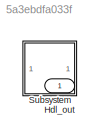
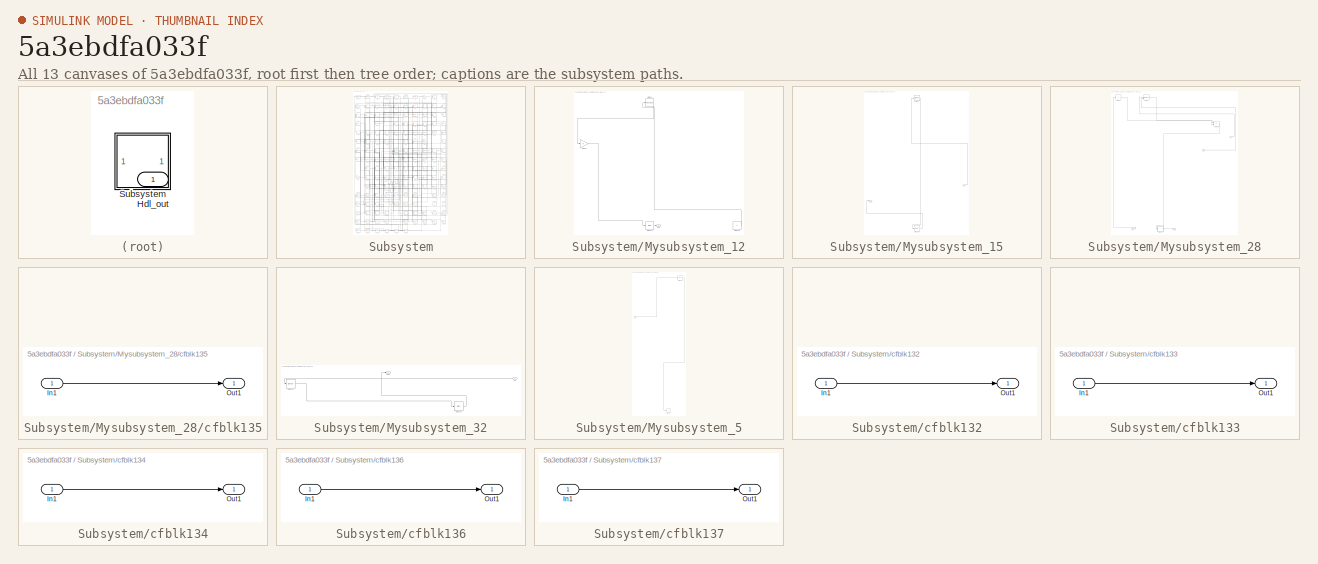
[diagram: thumbnail index - all 13 canvases of the model, root first then tree order]
MODEL slx_5a3ebdfa033f
KIND model
CONFIG AbsTol = auto
CONFIG EnableMultiTasking = off
CONFIG FixedStep = auto
CONFIG MaxStep = auto
CONFIG MinStep = auto
CONFIG RelTol = 1e-3
CONFIG SampleTimeConstraint = Unconstrained
CONFIG SolverName = VariableStepAuto
CONFIG StartTime = 0.0
CONFIG StopTime = 10.0
BLOCK [Outport] Hdl_out
  OutDataTypeStr = uint8
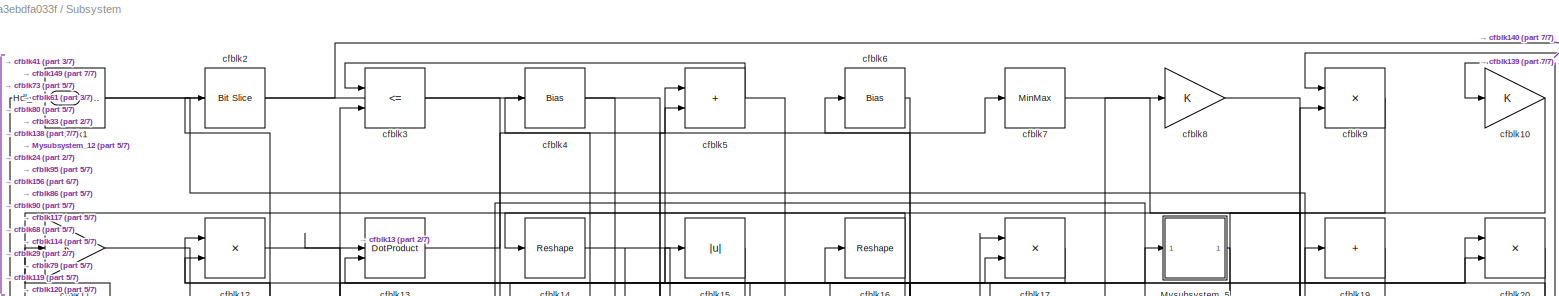
[diagram: Subsystem - part 1/7, full width, top band]
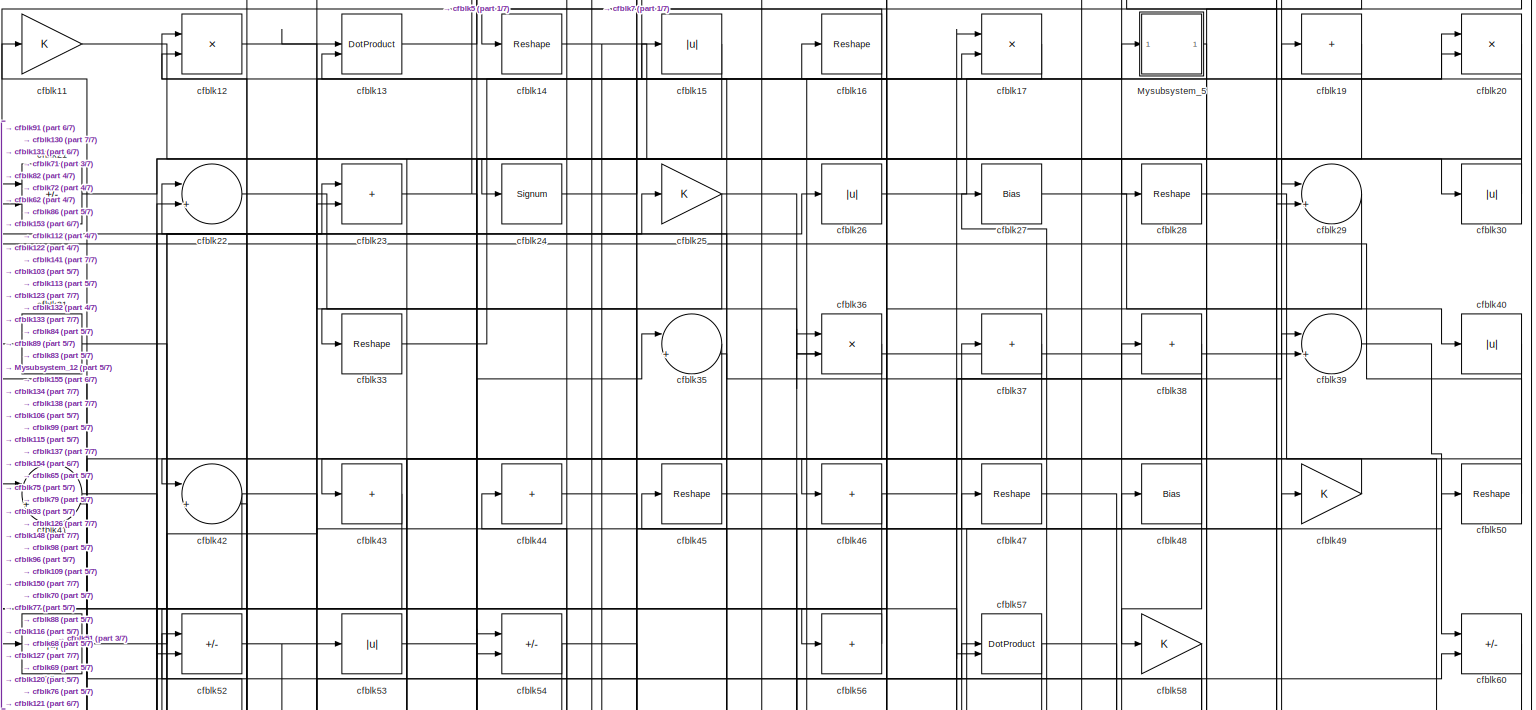
[diagram: Subsystem - part 2/7, full width, top band]
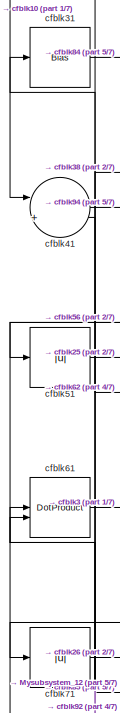
[diagram: Subsystem - part 3/7, middle left region]
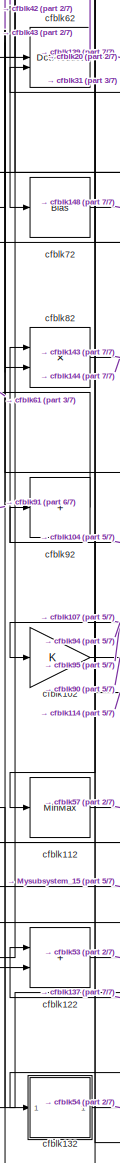
[diagram: Subsystem - part 4/7, middle left region]
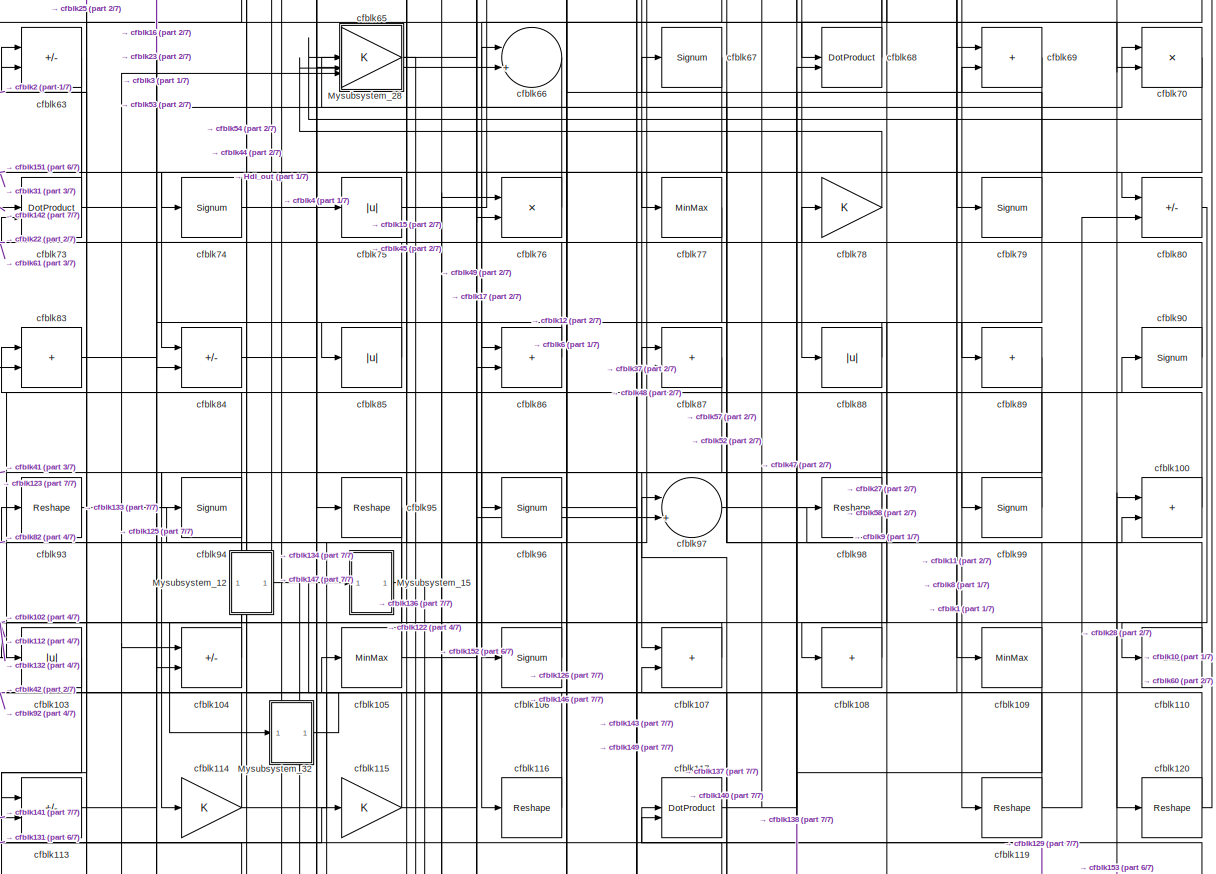
[diagram: Subsystem - part 5/7, full width, middle band]
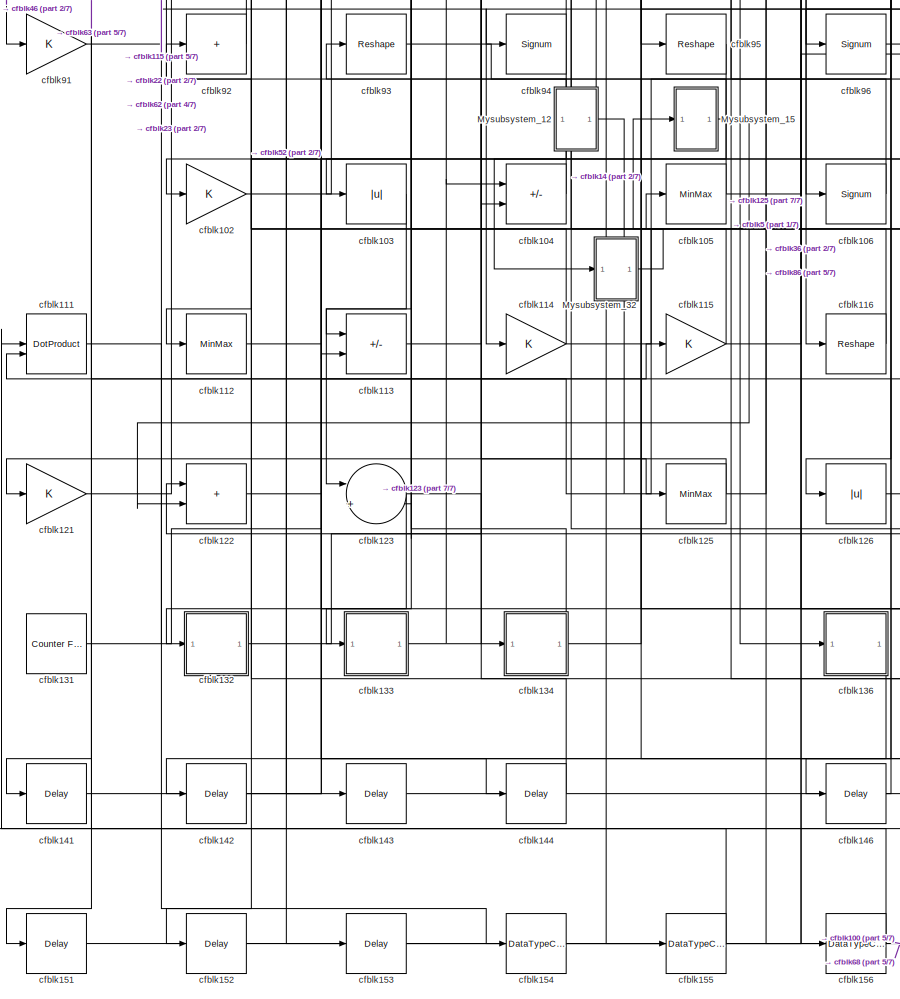
[diagram: Subsystem - part 6/7, bottom left region]
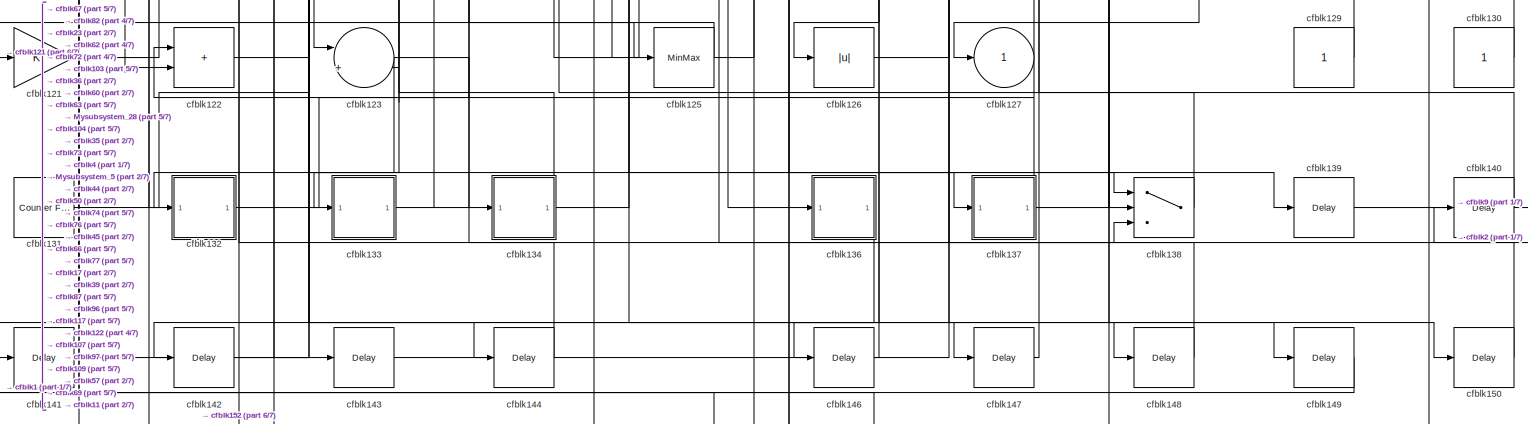
[diagram: Subsystem - part 7/7, full width, bottom band]
BLOCK [SubSystem] Subsystem
BLOCK [Outport] Subsystem/Hdl_out
  OutDataTypeStr = uint8
  Port = 2
BLOCK [SubSystem] Subsystem/Mysubsystem_12
  RTWFcnName = Mysubsystem_12
  RTWFcnNameOpts = User specified
  RTWFileNameOpts = Use function name
  RTWSystemCode = Reusable function
  TreatAsAtomicUnit = on
BLOCK [Outport] Subsystem/Mysubsystem_12/Out1
BLOCK [Bias] Subsystem/Mysubsystem_12/cfblk124
  Bias = 0.0
  SaturateOnIntegerOverflow = off
BLOCK [Constant] Subsystem/Mysubsystem_12/cfblk128
  SampleTime = -1
BLOCK [Reshape] Subsystem/Mysubsystem_12/cfblk64
BLOCK [Gain] Subsystem/Mysubsystem_12/cfblk81
BLOCK [SubSystem] Subsystem/Mysubsystem_15
  RTWFcnName = Mysubsystem_15
  RTWFcnNameOpts = User specified
  RTWFileNameOpts = Use function name
  RTWSystemCode = Reusable function
  TreatAsAtomicUnit = on
BLOCK [Inport] Subsystem/Mysubsystem_15/In1
BLOCK [Outport] Subsystem/Mysubsystem_15/Out1
BLOCK [Delay] Subsystem/Mysubsystem_15/cfblk145
  InputPortMap = u0
  SampleTime = 1
BLOCK [MinMax] Subsystem/Mysubsystem_15/cfblk55
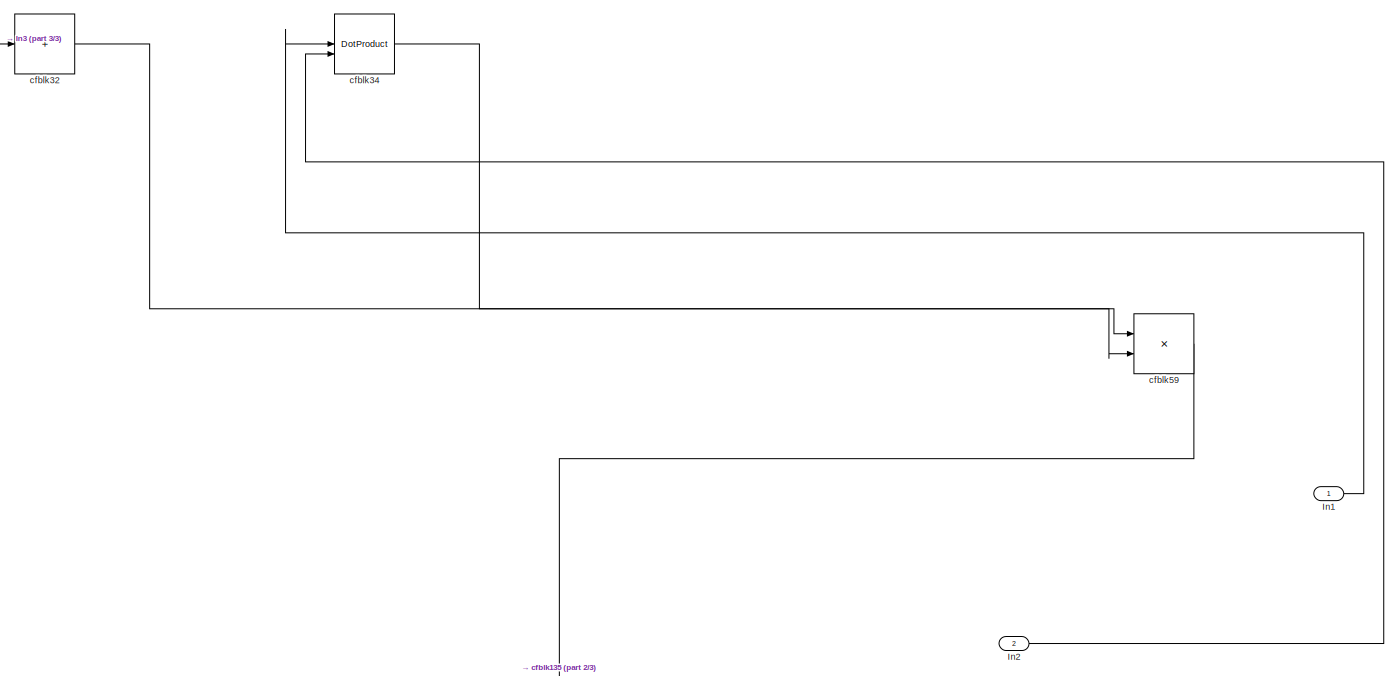
[diagram: Subsystem/Mysubsystem_28 - part 1/3, full width, top band]
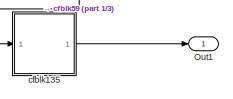
[diagram: Subsystem/Mysubsystem_28 - part 2/3, bottom center region]
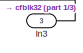
[diagram: Subsystem/Mysubsystem_28 - part 3/3, bottom left region]
BLOCK [SubSystem] Subsystem/Mysubsystem_28
  RTWFcnName = Mysubsystem_28
  RTWFcnNameOpts = User specified
  RTWFileNameOpts = Use function name
  RTWSystemCode = Reusable function
  TreatAsAtomicUnit = on
BLOCK [Inport] Subsystem/Mysubsystem_28/In1
BLOCK [Inport] Subsystem/Mysubsystem_28/In2
  Port = 2
BLOCK [Inport] Subsystem/Mysubsystem_28/In3
  Port = 3
BLOCK [Outport] Subsystem/Mysubsystem_28/Out1
BLOCK [SubSystem] Subsystem/Mysubsystem_28/cfblk135
  LibrarySourceBlock = hdlsllib/Ports &\nSubsystems/Subsystem
BLOCK [Inport] Subsystem/Mysubsystem_28/cfblk135/In1
BLOCK [Outport] Subsystem/Mysubsystem_28/cfblk135/Out1
BLOCK [Sum] Subsystem/Mysubsystem_28/cfblk32
  IconShape = rectangular
  Inputs = +
BLOCK [DotProduct] Subsystem/Mysubsystem_28/cfblk34
  OutDataTypeStr = Inherit: Inherit via internal rule
BLOCK [Product] Subsystem/Mysubsystem_28/cfblk59
  Inputs = */
  RndMeth = Zero
  SaturateOnIntegerOverflow = on
BLOCK [SubSystem] Subsystem/Mysubsystem_32
  RTWFcnName = Mysubsystem_32
  RTWFcnNameOpts = User specified
  RTWFileNameOpts = Use function name
  RTWSystemCode = Reusable function
  TreatAsAtomicUnit = on
BLOCK [Inport] Subsystem/Mysubsystem_32/In1
BLOCK [Outport] Subsystem/Mysubsystem_32/Out1
BLOCK [Signum] Subsystem/Mysubsystem_32/cfblk101
BLOCK [Bias] Subsystem/Mysubsystem_32/cfblk118
  Bias = 0.0
  SaturateOnIntegerOverflow = off
BLOCK [SubSystem] Subsystem/Mysubsystem_5
  RTWFcnName = Mysubsystem_5
  RTWFcnNameOpts = User specified
  RTWFileNameOpts = Use function name
  RTWSystemCode = Reusable function
  TreatAsAtomicUnit = on
BLOCK [Inport] Subsystem/Mysubsystem_5/In1
BLOCK [Outport] Subsystem/Mysubsystem_5/cfblk127
  VectorParamsAs1DForOutWhenUnconnected = off
BLOCK [Bias] Subsystem/Mysubsystem_5/cfblk18
  Bias = 0.0
  SaturateOnIntegerOverflow = off
BLOCK [Reference] Subsystem/cfblk1  REF=simulink/Logic and Bit
Operations/Detect
Increase
  LibrarySourceBlock = hdlsllib/Logic and Bit\nOperations/Detect\nIncrease
  SourceBlock = simulink/Logic and Bit\nOperations/Detect\nIncrease
  SourceType = Detect Increase
BLOCK [Gain] Subsystem/cfblk10
  OutDataTypeStr = uint8
BLOCK [Sum] Subsystem/cfblk100
  IconShape = rectangular
  OutDataTypeStr = uint8
BLOCK [Gain] Subsystem/cfblk102
  OutDataTypeStr = uint8
BLOCK [Abs] Subsystem/cfblk103
  OutDataTypeStr = uint8
  SaturateOnIntegerOverflow = off
BLOCK [Sum] Subsystem/cfblk104
  IconShape = rectangular
  Inputs = +-
  OutDataTypeStr = uint8
BLOCK [MinMax] Subsystem/cfblk105
  OutDataTypeStr = uint8
BLOCK [Signum] Subsystem/cfblk106
BLOCK [Sum] Subsystem/cfblk107
  IconShape = rectangular
  OutDataTypeStr = uint8
BLOCK [Sum] Subsystem/cfblk108
  IconShape = rectangular
  Inputs = +
  OutDataTypeStr = uint8
BLOCK [MinMax] Subsystem/cfblk109
  OutDataTypeStr = uint8
BLOCK [Gain] Subsystem/cfblk11
  OutDataTypeStr = uint8
BLOCK [Bias] Subsystem/cfblk110
  Bias = 0.0
  SaturateOnIntegerOverflow = off
BLOCK [DotProduct] Subsystem/cfblk111
  OutDataTypeStr = uint8
BLOCK [MinMax] Subsystem/cfblk112
  OutDataTypeStr = uint8
BLOCK [Sum] Subsystem/cfblk113
  IconShape = rectangular
  Inputs = +-
  OutDataTypeStr = uint8
BLOCK [Gain] Subsystem/cfblk114
  OutDataTypeStr = uint8
BLOCK [Gain] Subsystem/cfblk115
  OutDataTypeStr = uint8
BLOCK [Reshape] Subsystem/cfblk116
BLOCK [DotProduct] Subsystem/cfblk117
  OutDataTypeStr = uint8
BLOCK [Reshape] Subsystem/cfblk119
BLOCK [Product] Subsystem/cfblk12
  Inputs = */
  OutDataTypeStr = uint8
  RndMeth = Zero
  SaturateOnIntegerOverflow = on
BLOCK [Reshape] Subsystem/cfblk120
BLOCK [Gain] Subsystem/cfblk121
  OutDataTypeStr = uint8
BLOCK [Sum] Subsystem/cfblk122
  IconShape = rectangular
  OutDataTypeStr = uint8
BLOCK [Sum] Subsystem/cfblk123
  Inputs = |++
  OutDataTypeStr = uint8
BLOCK [MinMax] Subsystem/cfblk125
  OutDataTypeStr = uint8
BLOCK [Abs] Subsystem/cfblk126
  OutDataTypeStr = uint8
  SaturateOnIntegerOverflow = off
BLOCK [Outport] Subsystem/cfblk127
  OutDataTypeStr = uint8
  VectorParamsAs1DForOutWhenUnconnected = off
BLOCK [Constant] Subsystem/cfblk129
  OutDataTypeStr = uint8
  SampleTime = -1
BLOCK [DotProduct] Subsystem/cfblk13
  OutDataTypeStr = uint8
BLOCK [Constant] Subsystem/cfblk130
  OutDataTypeStr = uint8
  SampleTime = -1
BLOCK [Reference] Subsystem/cfblk131  REF=hdlsllib/Sources/Counter
Free-Running
  SourceBlock = hdlsllib/Sources/Counter\nFree-Running
  SourceType = Counter Free-Running
BLOCK [SubSystem] Subsystem/cfblk132
  LibrarySourceBlock = hdlsllib/Ports &\nSubsystems/Subsystem
BLOCK [Inport] Subsystem/cfblk132/In1
BLOCK [Outport] Subsystem/cfblk132/Out1
BLOCK [SubSystem] Subsystem/cfblk133
  LibrarySourceBlock = hdlsllib/Ports &\nSubsystems/Subsystem
BLOCK [Inport] Subsystem/cfblk133/In1
BLOCK [Outport] Subsystem/cfblk133/Out1
BLOCK [SubSystem] Subsystem/cfblk134
  LibrarySourceBlock = hdlsllib/Ports &\nSubsystems/Subsystem
BLOCK [Inport] Subsystem/cfblk134/In1
BLOCK [Outport] Subsystem/cfblk134/Out1
BLOCK [SubSystem] Subsystem/cfblk136
  LibrarySourceBlock = hdlsllib/Ports &\nSubsystems/Subsystem
BLOCK [Inport] Subsystem/cfblk136/In1
BLOCK [Outport] Subsystem/cfblk136/Out1
BLOCK [SubSystem] Subsystem/cfblk137
  LibrarySourceBlock = hdlsllib/Ports &\nSubsystems/Subsystem
BLOCK [Inport] Subsystem/cfblk137/In1
BLOCK [Outport] Subsystem/cfblk137/Out1
BLOCK [Switch] Subsystem/cfblk138
  InputSameDT = off
  OutDataTypeStr = uint8
  SaturateOnIntegerOverflow = off
BLOCK [Delay] Subsystem/cfblk139
  InputPortMap = u0
  SampleTime = 1
BLOCK [Reshape] Subsystem/cfblk14
BLOCK [Delay] Subsystem/cfblk140
  InputPortMap = u0
  SampleTime = 1
BLOCK [Delay] Subsystem/cfblk141
  InputPortMap = u0
  SampleTime = 1
BLOCK [Delay] Subsystem/cfblk142
  InputPortMap = u0
  SampleTime = 1
BLOCK [Delay] Subsystem/cfblk143
  InputPortMap = u0
  SampleTime = 1
BLOCK [Delay] Subsystem/cfblk144
  InputPortMap = u0
  SampleTime = 1
BLOCK [Delay] Subsystem/cfblk146
  InputPortMap = u0
  SampleTime = 1
BLOCK [Delay] Subsystem/cfblk147
  InputPortMap = u0
  SampleTime = 1
BLOCK [Delay] Subsystem/cfblk148
  InputPortMap = u0
  SampleTime = 1
BLOCK [Delay] Subsystem/cfblk149
  InputPortMap = u0
  SampleTime = 1
BLOCK [Abs] Subsystem/cfblk15
  OutDataTypeStr = uint8
  SaturateOnIntegerOverflow = off
BLOCK [Delay] Subsystem/cfblk150
  InputPortMap = u0
  SampleTime = 1
BLOCK [Delay] Subsystem/cfblk151
  InputPortMap = u0
  SampleTime = 1
BLOCK [Delay] Subsystem/cfblk152
  InputPortMap = u0
  SampleTime = 1
BLOCK [Delay] Subsystem/cfblk153
  InputPortMap = u0
  SampleTime = 1
BLOCK [DataTypeConversion] Subsystem/cfblk154
  OutDataTypeStr = uint8
  RndMeth = Floor
  SaturateOnIntegerOverflow = off
BLOCK [DataTypeConversion] Subsystem/cfblk155
  OutDataTypeStr = uint8
  RndMeth = Floor
  SaturateOnIntegerOverflow = off
BLOCK [DataTypeConversion] Subsystem/cfblk156
  OutDataTypeStr = uint8
  RndMeth = Floor
  SaturateOnIntegerOverflow = off
BLOCK [Reshape] Subsystem/cfblk16
BLOCK [Product] Subsystem/cfblk17
  Inputs = */
  OutDataTypeStr = uint8
  RndMeth = Zero
  SaturateOnIntegerOverflow = on
BLOCK [Sum] Subsystem/cfblk19
  IconShape = rectangular
  Inputs = +
  OutDataTypeStr = uint8
BLOCK [Reference] Subsystem/cfblk2  REF=hdlsllib/Logic and Bit
Operations/Bit Slice
  SourceBlock = hdlsllib/Logic and Bit\nOperations/Bit Slice
  SourceType = Bit Slice
BLOCK [Product] Subsystem/cfblk20
  Inputs = */
  OutDataTypeStr = uint8
  RndMeth = Zero
  SaturateOnIntegerOverflow = on
BLOCK [Sum] Subsystem/cfblk21
  IconShape = rectangular
  Inputs = +-
  OutDataTypeStr = uint8
BLOCK [Sum] Subsystem/cfblk22
  Inputs = |++
  OutDataTypeStr = uint8
BLOCK [Sum] Subsystem/cfblk23
  IconShape = rectangular
  OutDataTypeStr = uint8
BLOCK [Signum] Subsystem/cfblk24
BLOCK [Gain] Subsystem/cfblk25
  OutDataTypeStr = uint8
BLOCK [Abs] Subsystem/cfblk26
  OutDataTypeStr = uint8
  SaturateOnIntegerOverflow = off
BLOCK [Bias] Subsystem/cfblk27
  Bias = 0.0
  SaturateOnIntegerOverflow = off
BLOCK [Reshape] Subsystem/cfblk28
BLOCK [Sum] Subsystem/cfblk29
  Inputs = |++
  OutDataTypeStr = uint8
BLOCK [RelationalOperator] Subsystem/cfblk3
  InputSameDT = off
  Operator = <=
  OutDataTypeStr = boolean
BLOCK [Abs] Subsystem/cfblk30
  OutDataTypeStr = uint8
  SaturateOnIntegerOverflow = off
BLOCK [Bias] Subsystem/cfblk31
  Bias = 0.0
  SaturateOnIntegerOverflow = off
BLOCK [Reshape] Subsystem/cfblk33
BLOCK [Sum] Subsystem/cfblk35
  Inputs = |++
  OutDataTypeStr = uint8
BLOCK [Product] Subsystem/cfblk36
  Inputs = */
  OutDataTypeStr = uint8
  RndMeth = Zero
  SaturateOnIntegerOverflow = on
BLOCK [Sum] Subsystem/cfblk37
  IconShape = rectangular
  Inputs = +
  OutDataTypeStr = uint8
BLOCK [Sum] Subsystem/cfblk38
  IconShape = rectangular
  Inputs = +
  OutDataTypeStr = uint8
BLOCK [Sum] Subsystem/cfblk39
  Inputs = |++
  OutDataTypeStr = uint8
BLOCK [Bias] Subsystem/cfblk4
  Bias = 0.0
  SaturateOnIntegerOverflow = off
BLOCK [Abs] Subsystem/cfblk40
  OutDataTypeStr = uint8
  SaturateOnIntegerOverflow = off
BLOCK [Sum] Subsystem/cfblk41
  Inputs = |++
  OutDataTypeStr = uint8
BLOCK [Sum] Subsystem/cfblk42
  Inputs = |++
  OutDataTypeStr = uint8
BLOCK [Sum] Subsystem/cfblk43
  IconShape = rectangular
  Inputs = +
  OutDataTypeStr = uint8
BLOCK [Sum] Subsystem/cfblk44
  IconShape = rectangular
  Inputs = +
  OutDataTypeStr = uint8
BLOCK [Reshape] Subsystem/cfblk45
BLOCK [Sum] Subsystem/cfblk46
  IconShape = rectangular
  Inputs = +
  OutDataTypeStr = uint8
BLOCK [Reshape] Subsystem/cfblk47
BLOCK [Bias] Subsystem/cfblk48
  Bias = 0.0
  SaturateOnIntegerOverflow = off
BLOCK [Gain] Subsystem/cfblk49
  OutDataTypeStr = uint8
BLOCK [Sum] Subsystem/cfblk5
  IconShape = rectangular
  OutDataTypeStr = uint8
BLOCK [Reshape] Subsystem/cfblk50
BLOCK [Abs] Subsystem/cfblk51
  OutDataTypeStr = uint8
  SaturateOnIntegerOverflow = off
BLOCK [Sum] Subsystem/cfblk52
  IconShape = rectangular
  Inputs = +-
  OutDataTypeStr = uint8
BLOCK [Abs] Subsystem/cfblk53
  OutDataTypeStr = uint8
  SaturateOnIntegerOverflow = off
BLOCK [Sum] Subsystem/cfblk54
  IconShape = rectangular
  Inputs = +-
  OutDataTypeStr = uint8
BLOCK [Sum] Subsystem/cfblk56
  IconShape = rectangular
  Inputs = +
  OutDataTypeStr = uint8
BLOCK [DotProduct] Subsystem/cfblk57
  OutDataTypeStr = uint8
BLOCK [Gain] Subsystem/cfblk58
  OutDataTypeStr = uint8
BLOCK [Bias] Subsystem/cfblk6
  Bias = 0.0
  SaturateOnIntegerOverflow = off
BLOCK [Sum] Subsystem/cfblk60
  IconShape = rectangular
  Inputs = +-
  OutDataTypeStr = uint8
BLOCK [DotProduct] Subsystem/cfblk61
  OutDataTypeStr = uint8
BLOCK [DotProduct] Subsystem/cfblk62
  OutDataTypeStr = uint8
BLOCK [Sum] Subsystem/cfblk63
  IconShape = rectangular
  Inputs = +-
  OutDataTypeStr = uint8
BLOCK [Gain] Subsystem/cfblk65
  OutDataTypeStr = uint8
BLOCK [Sum] Subsystem/cfblk66
  Inputs = |++
  OutDataTypeStr = uint8
BLOCK [Signum] Subsystem/cfblk67
BLOCK [DotProduct] Subsystem/cfblk68
  OutDataTypeStr = uint8
BLOCK [Sum] Subsystem/cfblk69
  IconShape = rectangular
  OutDataTypeStr = uint8
BLOCK [MinMax] Subsystem/cfblk7
  OutDataTypeStr = uint8
BLOCK [Product] Subsystem/cfblk70
  Inputs = */
  OutDataTypeStr = uint8
  RndMeth = Zero
  SaturateOnIntegerOverflow = on
BLOCK [Abs] Subsystem/cfblk71
  OutDataTypeStr = uint8
  SaturateOnIntegerOverflow = off
BLOCK [Bias] Subsystem/cfblk72
  Bias = 0.0
  SaturateOnIntegerOverflow = off
BLOCK [DotProduct] Subsystem/cfblk73
  OutDataTypeStr = uint8
BLOCK [Signum] Subsystem/cfblk74
BLOCK [Abs] Subsystem/cfblk75
  OutDataTypeStr = uint8
  SaturateOnIntegerOverflow = off
BLOCK [Product] Subsystem/cfblk76
  Inputs = */
  OutDataTypeStr = uint8
  RndMeth = Zero
  SaturateOnIntegerOverflow = on
BLOCK [MinMax] Subsystem/cfblk77
  OutDataTypeStr = uint8
BLOCK [Gain] Subsystem/cfblk78
  OutDataTypeStr = uint8
BLOCK [Signum] Subsystem/cfblk79
BLOCK [Gain] Subsystem/cfblk8
  OutDataTypeStr = uint8
BLOCK [Sum] Subsystem/cfblk80
  IconShape = rectangular
  Inputs = +-
  OutDataTypeStr = uint8
BLOCK [Product] Subsystem/cfblk82
  Inputs = */
  OutDataTypeStr = uint8
  RndMeth = Zero
  SaturateOnIntegerOverflow = on
BLOCK [Sum] Subsystem/cfblk83
  IconShape = rectangular
  OutDataTypeStr = uint8
BLOCK [Sum] Subsystem/cfblk84
  IconShape = rectangular
  Inputs = +-
  OutDataTypeStr = uint8
BLOCK [Abs] Subsystem/cfblk85
  OutDataTypeStr = uint8
  SaturateOnIntegerOverflow = off
BLOCK [Sum] Subsystem/cfblk86
  IconShape = rectangular
  OutDataTypeStr = uint8
BLOCK [Sum] Subsystem/cfblk87
  IconShape = rectangular
  OutDataTypeStr = uint8
BLOCK [Abs] Subsystem/cfblk88
  OutDataTypeStr = uint8
  SaturateOnIntegerOverflow = off
BLOCK [Sum] Subsystem/cfblk89
  IconShape = rectangular
  Inputs = +
  OutDataTypeStr = uint8
BLOCK [Product] Subsystem/cfblk9
  Inputs = */
  OutDataTypeStr = uint8
  RndMeth = Zero
  SaturateOnIntegerOverflow = on
BLOCK [Signum] Subsystem/cfblk90
BLOCK [Gain] Subsystem/cfblk91
  OutDataTypeStr = uint8
BLOCK [Sum] Subsystem/cfblk92
  IconShape = rectangular
  Inputs = +
  OutDataTypeStr = uint8
BLOCK [Reshape] Subsystem/cfblk93
BLOCK [Signum] Subsystem/cfblk94
BLOCK [Reshape] Subsystem/cfblk95
BLOCK [Signum] Subsystem/cfblk96
BLOCK [Sum] Subsystem/cfblk97
  Inputs = |++
  OutDataTypeStr = uint8
BLOCK [Reshape] Subsystem/cfblk98
BLOCK [Signum] Subsystem/cfblk99
LINE Subsystem/Mysubsystem_12/cfblk124:1 -> Subsystem/Mysubsystem_12/Out1:1
LINE Subsystem/Mysubsystem_12/cfblk128:1 -> Subsystem/Mysubsystem_12/cfblk64:1
LINE Subsystem/Mysubsystem_12/cfblk64:1 -> Subsystem/Mysubsystem_12/cfblk81:1
LINE Subsystem/Mysubsystem_12/cfblk81:1 -> Subsystem/Mysubsystem_12/cfblk124:1
NET Subsystem/Mysubsystem_12:1 -> Subsystem/Hdl_out:1, Subsystem/cfblk41:2, Subsystem/cfblk48:1
LINE Subsystem/Mysubsystem_15/In1:1 -> Subsystem/Mysubsystem_15/cfblk55:1
LINE Subsystem/Mysubsystem_15/cfblk145:1 -> Subsystem/Mysubsystem_15/Out1:1
LINE Subsystem/Mysubsystem_15/cfblk55:1 -> Subsystem/Mysubsystem_15/cfblk145:1
LINE Subsystem/Mysubsystem_15:1 -> Subsystem/cfblk122:2
LINE Subsystem/Mysubsystem_28/In1:1 -> Subsystem/Mysubsystem_28/cfblk34:1
LINE Subsystem/Mysubsystem_28/In2:1 -> Subsystem/Mysubsystem_28/cfblk34:2
LINE Subsystem/Mysubsystem_28/In3:1 -> Subsystem/Mysubsystem_28/cfblk32:1
LINE Subsystem/Mysubsystem_28/cfblk135/In1:1 -> Subsystem/Mysubsystem_28/cfblk135/Out1:1
LINE Subsystem/Mysubsystem_28/cfblk135:1 -> Subsystem/Mysubsystem_28/Out1:1
LINE Subsystem/Mysubsystem_28/cfblk32:1 -> Subsystem/Mysubsystem_28/cfblk59:2
LINE Subsystem/Mysubsystem_28/cfblk34:1 -> Subsystem/Mysubsystem_28/cfblk59:1
LINE Subsystem/Mysubsystem_28/cfblk59:1 -> Subsystem/Mysubsystem_28/cfblk135:1
LINE Subsystem/Mysubsystem_28:1 -> Subsystem/cfblk136:1
LINE Subsystem/Mysubsystem_32/In1:1 -> Subsystem/Mysubsystem_32/cfblk101:1
LINE Subsystem/Mysubsystem_32/cfblk101:1 -> Subsystem/Mysubsystem_32/cfblk118:1
LINE Subsystem/Mysubsystem_32/cfblk118:1 -> Subsystem/Mysubsystem_32/Out1:1
LINE Subsystem/Mysubsystem_32:1 -> Subsystem/Mysubsystem_15:1
LINE Subsystem/Mysubsystem_5/In1:1 -> Subsystem/Mysubsystem_5/cfblk18:1
LINE Subsystem/Mysubsystem_5/cfblk18:1 -> Subsystem/Mysubsystem_5/cfblk127:1
LINE Subsystem/Mysubsystem_5:1 -> Subsystem/cfblk127:1
LINE Subsystem/cfblk100:1 -> Subsystem/cfblk87:1
LINE Subsystem/cfblk102:1 -> Subsystem/cfblk90:1
LINE Subsystem/cfblk103:1 -> Subsystem/cfblk123:1
LINE Subsystem/cfblk104:1 -> Subsystem/cfblk82:1
NET Subsystem/cfblk105:1 -> Subsystem/cfblk63:2, Subsystem/cfblk97:2
LINE Subsystem/cfblk106:1 -> Subsystem/cfblk45:1
LINE Subsystem/cfblk107:1 -> Subsystem/cfblk102:1
LINE Subsystem/cfblk108:1 -> Subsystem/cfblk65:1
NET Subsystem/cfblk109:1 -> Subsystem/cfblk138:2, Subsystem/cfblk52:1
LINE Subsystem/cfblk10:1 -> Subsystem/cfblk41:1
NET Subsystem/cfblk110:1 -> Subsystem/Mysubsystem_32:1, Subsystem/cfblk67:1
LINE Subsystem/cfblk111:1 -> Subsystem/cfblk154:1
LINE Subsystem/cfblk112:1 -> Subsystem/cfblk57:1
LINE Subsystem/cfblk113:1 -> Subsystem/cfblk70:1
NET Subsystem/cfblk114:1 -> Subsystem/cfblk92:1, Subsystem/cfblk9:2
NET Subsystem/cfblk115:1 -> Subsystem/cfblk12:1, Subsystem/cfblk60:2
LINE Subsystem/cfblk116:1 -> Subsystem/cfblk44:1
NET Subsystem/cfblk117:1 -> Subsystem/cfblk8:1, Subsystem/cfblk98:1
NET Subsystem/cfblk119:1 -> Subsystem/cfblk105:1, Subsystem/cfblk80:2, Subsystem/cfblk93:1
NET Subsystem/cfblk11:1 -> Subsystem/cfblk109:1, Subsystem/cfblk69:1
NET Subsystem/cfblk120:1 -> Subsystem/cfblk10:1, Subsystem/cfblk42:2
LINE Subsystem/cfblk121:1 -> Subsystem/cfblk23:1
LINE Subsystem/cfblk122:1 -> Subsystem/cfblk53:1
NET Subsystem/cfblk123:1 -> Subsystem/cfblk134:1, Subsystem/cfblk152:1
NET Subsystem/cfblk125:1 -> Subsystem/cfblk121:1, Subsystem/cfblk76:1
LINE Subsystem/cfblk126:1 -> Subsystem/cfblk39:1
LINE Subsystem/cfblk129:1 -> Subsystem/cfblk117:1
NET Subsystem/cfblk12:1 -> Subsystem/cfblk13:1, Subsystem/cfblk36:2
LINE Subsystem/cfblk130:1 -> Subsystem/cfblk11:1
NET Subsystem/cfblk131:1 -> Subsystem/cfblk115:1, Subsystem/cfblk22:2
LINE Subsystem/cfblk132/In1:1 -> Subsystem/cfblk132/Out1:1
LINE Subsystem/cfblk132:1 -> Subsystem/cfblk54:1
LINE Subsystem/cfblk133/In1:1 -> Subsystem/cfblk133/Out1:1
NET Subsystem/cfblk133:1 -> Subsystem/Mysubsystem_28:3, Subsystem/cfblk104:1, Subsystem/cfblk138:3, Subsystem/cfblk35:1
LINE Subsystem/cfblk134/In1:1 -> Subsystem/cfblk134/Out1:1
NET Subsystem/cfblk134:1 -> Subsystem/Mysubsystem_5:1, Subsystem/cfblk50:1, Subsystem/cfblk63:1
LINE Subsystem/cfblk136/In1:1 -> Subsystem/cfblk136/Out1:1
LINE Subsystem/cfblk136:1 -> Subsystem/cfblk142:1
LINE Subsystem/cfblk137/In1:1 -> Subsystem/cfblk137/Out1:1
NET Subsystem/cfblk137:1 -> Subsystem/cfblk117:2, Subsystem/cfblk122:1, Subsystem/cfblk69:2
LINE Subsystem/cfblk138:1 -> Subsystem/cfblk4:1
LINE Subsystem/cfblk139:1 -> Subsystem/cfblk9:1
LINE Subsystem/cfblk13:1 -> Subsystem/cfblk5:1
LINE Subsystem/cfblk140:1 -> Subsystem/cfblk97:1
LINE Subsystem/cfblk141:1 -> Subsystem/cfblk23:2
LINE Subsystem/cfblk142:1 -> Subsystem/cfblk73:1
LINE Subsystem/cfblk143:1 -> Subsystem/cfblk87:2
LINE Subsystem/cfblk144:1 -> Subsystem/cfblk62:2
LINE Subsystem/cfblk146:1 -> Subsystem/cfblk66:1
LINE Subsystem/cfblk147:1 -> Subsystem/cfblk107:2
LINE Subsystem/cfblk148:1 -> Subsystem/cfblk17:1
LINE Subsystem/cfblk149:1 -> Subsystem/cfblk1:1
NET Subsystem/cfblk14:1 -> Subsystem/cfblk155:1, Subsystem/cfblk28:1
LINE Subsystem/cfblk150:1 -> Subsystem/cfblk35:2
LINE Subsystem/cfblk151:1 -> Subsystem/cfblk68:2
LINE Subsystem/cfblk152:1 -> Subsystem/cfblk86:2
LINE Subsystem/cfblk153:1 -> Subsystem/cfblk100:1
LINE Subsystem/cfblk154:1 -> Subsystem/cfblk36:1
LINE Subsystem/cfblk155:1 -> Subsystem/cfblk111:1
LINE Subsystem/cfblk156:1 -> Subsystem/cfblk111:2
NET Subsystem/cfblk15:1 -> Subsystem/cfblk33:1, Subsystem/cfblk52:2
NET Subsystem/cfblk16:1 -> Subsystem/cfblk14:1, Subsystem/cfblk84:2
LINE Subsystem/cfblk17:1 -> Subsystem/cfblk13:2
LINE Subsystem/cfblk19:1 -> Subsystem/cfblk29:1
LINE Subsystem/cfblk1:1 -> Subsystem/cfblk119:1
LINE Subsystem/cfblk20:1 -> Subsystem/cfblk54:2
LINE Subsystem/cfblk21:1 -> Subsystem/cfblk30:1
LINE Subsystem/cfblk22:1 -> Subsystem/cfblk75:1
NET Subsystem/cfblk23:1 -> Subsystem/cfblk77:1, Subsystem/cfblk88:1
LINE Subsystem/cfblk24:1 -> Subsystem/cfblk7:1
NET Subsystem/cfblk25:1 -> Subsystem/cfblk113:1, Subsystem/cfblk39:2
LINE Subsystem/cfblk26:1 -> Subsystem/cfblk20:1
LINE Subsystem/cfblk27:1 -> Subsystem/cfblk40:1
LINE Subsystem/cfblk28:1 -> Subsystem/cfblk120:1
LINE Subsystem/cfblk29:1 -> Subsystem/cfblk56:1
LINE Subsystem/cfblk2:1 -> Subsystem/cfblk140:1
NET Subsystem/cfblk30:1 -> Subsystem/cfblk19:1, Subsystem/cfblk24:1
LINE Subsystem/cfblk31:1 -> Subsystem/cfblk84:1
LINE Subsystem/cfblk33:1 -> Subsystem/cfblk5:2
LINE Subsystem/cfblk35:1 -> Subsystem/cfblk42:1
LINE Subsystem/cfblk36:1 -> Subsystem/cfblk123:2
LINE Subsystem/cfblk37:1 -> Subsystem/cfblk103:1
LINE Subsystem/cfblk38:1 -> Subsystem/cfblk71:1
LINE Subsystem/cfblk39:1 -> Subsystem/cfblk60:1
LINE Subsystem/cfblk3:1 -> Subsystem/cfblk80:1
LINE Subsystem/cfblk40:1 -> Subsystem/cfblk46:1
LINE Subsystem/cfblk41:1 -> Subsystem/cfblk94:1
NET Subsystem/cfblk42:1 -> Subsystem/cfblk57:2, Subsystem/cfblk72:1
LINE Subsystem/cfblk43:1 -> Subsystem/cfblk82:2
LINE Subsystem/cfblk44:1 -> Subsystem/cfblk138:1
LINE Subsystem/cfblk45:1 -> Subsystem/cfblk137:1
NET Subsystem/cfblk46:1 -> Subsystem/cfblk38:1, Subsystem/cfblk91:1
LINE Subsystem/cfblk47:1 -> Subsystem/cfblk70:2
NET Subsystem/cfblk48:1 -> Subsystem/cfblk21:2, Subsystem/cfblk58:1
LINE Subsystem/cfblk49:1 -> Subsystem/cfblk43:1
LINE Subsystem/cfblk4:1 -> Subsystem/cfblk95:1
LINE Subsystem/cfblk50:1 -> Subsystem/cfblk21:1
LINE Subsystem/cfblk51:1 -> Subsystem/cfblk25:1
NET Subsystem/cfblk52:1 -> Subsystem/cfblk153:1, Subsystem/cfblk47:1
LINE Subsystem/cfblk53:1 -> Subsystem/cfblk89:1
NET Subsystem/cfblk54:1 -> Subsystem/cfblk83:2, Subsystem/cfblk99:1
LINE Subsystem/cfblk56:1 -> Subsystem/cfblk51:1
NET Subsystem/cfblk57:1 -> Subsystem/cfblk150:1, Subsystem/cfblk96:1
LINE Subsystem/cfblk58:1 -> Subsystem/cfblk116:1
NET Subsystem/cfblk5:1 -> Subsystem/cfblk156:1, Subsystem/cfblk3:1
NET Subsystem/cfblk60:1 -> Subsystem/cfblk133:1, Subsystem/cfblk76:2
LINE Subsystem/cfblk61:1 -> Subsystem/cfblk3:2
NET Subsystem/cfblk62:1 -> Subsystem/cfblk139:1, Subsystem/cfblk20:2, Subsystem/cfblk31:1
LINE Subsystem/cfblk63:1 -> Subsystem/cfblk151:1
LINE Subsystem/cfblk65:1 -> Subsystem/cfblk49:1
LINE Subsystem/cfblk66:1 -> Subsystem/cfblk106:1
NET Subsystem/cfblk67:1 -> Subsystem/cfblk113:2, Subsystem/cfblk141:1
LINE Subsystem/cfblk68:1 -> Subsystem/cfblk27:1
LINE Subsystem/cfblk69:1 -> Subsystem/cfblk126:1
LINE Subsystem/cfblk6:1 -> Subsystem/cfblk86:1
NET Subsystem/cfblk70:1 -> Subsystem/Mysubsystem_28:1, Subsystem/cfblk104:2
LINE Subsystem/cfblk71:1 -> Subsystem/cfblk26:1
LINE Subsystem/cfblk72:1 -> Subsystem/cfblk148:1
NET Subsystem/cfblk73:1 -> Subsystem/cfblk125:1, Subsystem/cfblk2:1
LINE Subsystem/cfblk74:1 -> Subsystem/cfblk147:1
LINE Subsystem/cfblk75:1 -> Subsystem/cfblk17:2
LINE Subsystem/cfblk76:1 -> Subsystem/cfblk74:1
LINE Subsystem/cfblk77:1 -> Subsystem/cfblk146:1
LINE Subsystem/cfblk78:1 -> Subsystem/Mysubsystem_28:2
NET Subsystem/cfblk79:1 -> Subsystem/cfblk108:1, Subsystem/cfblk12:2
LINE Subsystem/cfblk7:1 -> Subsystem/cfblk29:2
LINE Subsystem/cfblk80:1 -> Subsystem/cfblk110:1
NET Subsystem/cfblk82:1 -> Subsystem/cfblk143:1, Subsystem/cfblk144:1
LINE Subsystem/cfblk83:1 -> Subsystem/cfblk78:1
LINE Subsystem/cfblk84:1 -> Subsystem/cfblk66:2
LINE Subsystem/cfblk85:1 -> Subsystem/cfblk61:2
LINE Subsystem/cfblk86:1 -> Subsystem/cfblk22:1
LINE Subsystem/cfblk87:1 -> Subsystem/cfblk114:1
LINE Subsystem/cfblk88:1 -> Subsystem/cfblk85:1
LINE Subsystem/cfblk89:1 -> Subsystem/cfblk107:1
LINE Subsystem/cfblk8:1 -> Subsystem/cfblk79:1
NET Subsystem/cfblk90:1 -> Subsystem/cfblk6:1, Subsystem/cfblk73:2
LINE Subsystem/cfblk91:1 -> Subsystem/cfblk62:1
LINE Subsystem/cfblk92:1 -> Subsystem/cfblk61:1
LINE Subsystem/cfblk93:1 -> Subsystem/cfblk16:1
NET Subsystem/cfblk94:1 -> Subsystem/cfblk132:1, Subsystem/cfblk83:1
LINE Subsystem/cfblk95:1 -> Subsystem/cfblk112:1
LINE Subsystem/cfblk96:1 -> Subsystem/cfblk149:1
LINE Subsystem/cfblk97:1 -> Subsystem/cfblk100:2
LINE Subsystem/cfblk98:1 -> Subsystem/cfblk37:1
LINE Subsystem/cfblk99:1 -> Subsystem/cfblk15:1
LINE Subsystem/cfblk9:1 -> Subsystem/cfblk68:1
note: NET lines group one-source signal fan-out (src -> all destinations, sorted); 1:1 wires keep LINE
